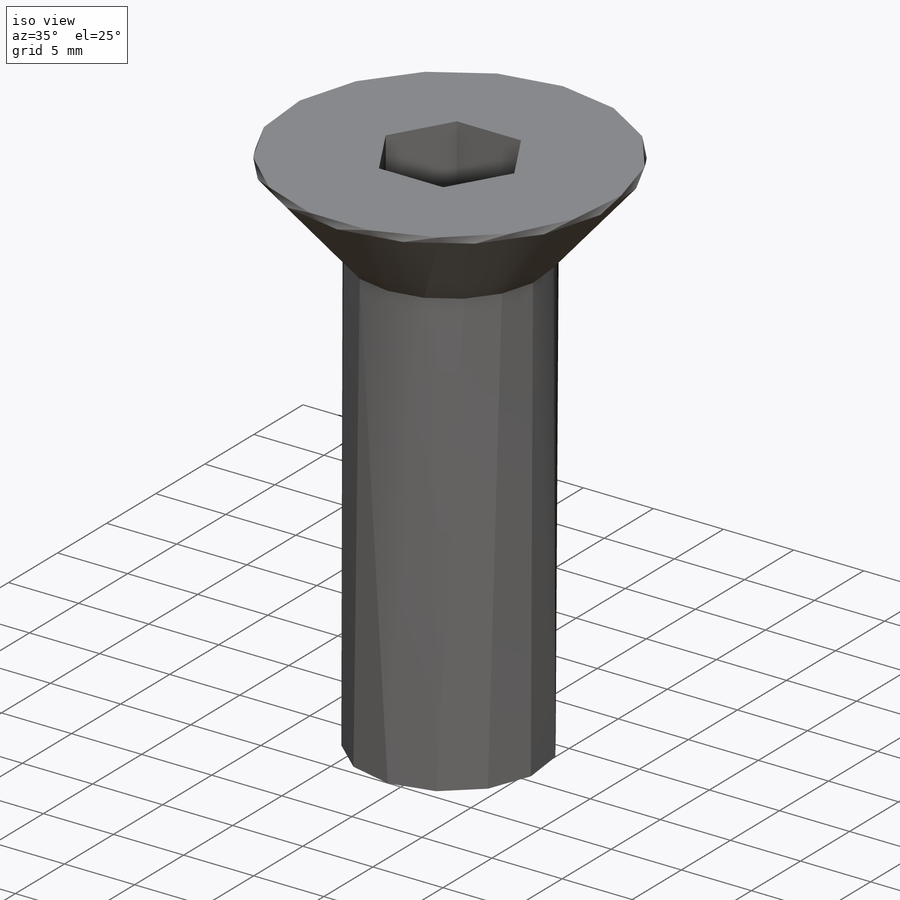
[diagram: iso view]
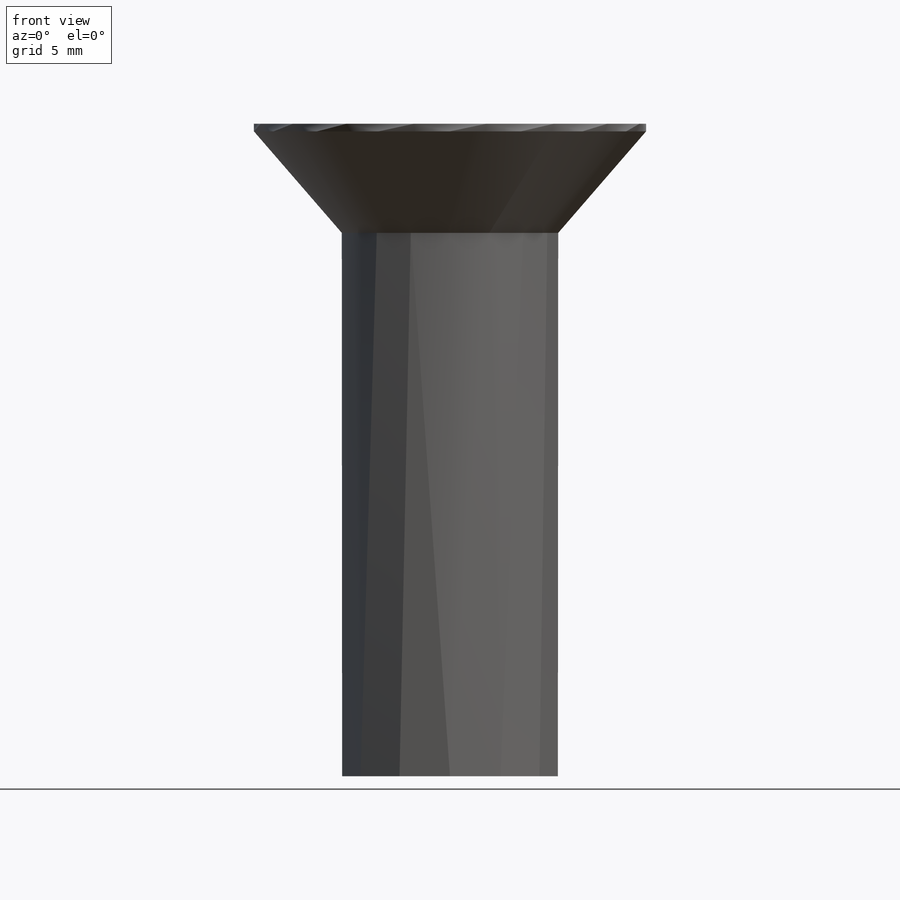
[diagram: front view]
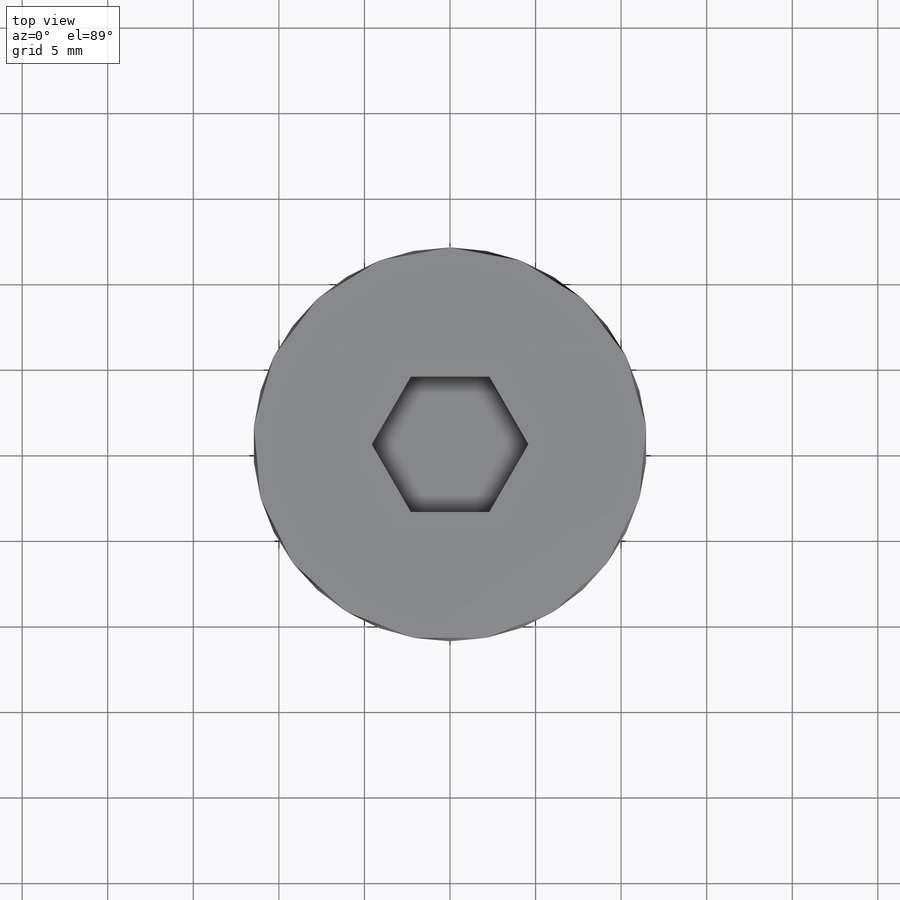
[diagram: top view]
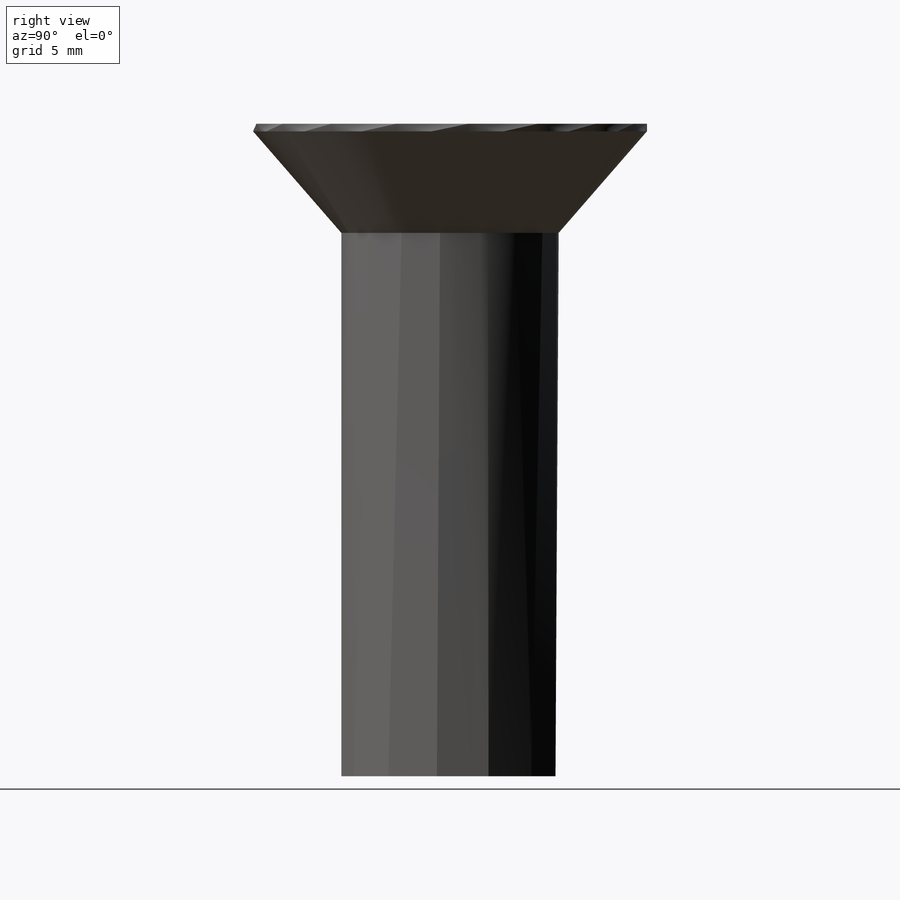
[diagram: right view]
SOLIDWORKS PART (.sldprt)
format: sldprt  version: not decoded by parser v0  size: 371,200 bytes
history: native  units: mm
features: sketch x3, material x1, plane x1, revolve x1, extrude x1, cut_extrude x1 + 1 further entry (+11 scaffold rows collapsed)
feature tree (20):
  scaffold x11  (default folders/planes/origin — collapsed)
  material  "Material <not specified>"
  plane  "Side"
  "Design Table"
  sketch  "Sketch1"  dims[c1.HeadDia=~23.01875mm c1.D2=~6.953199mm c2.D2=82.0deg c2.BodyDia=12.7mm c2.HeadHeight=6.3754mm]
  revolve  "Head"  Angle=360deg
  sketch  "Sketch2"
  extrude  "Length"  Depth=31.75mm Length=31.75mm
  sketch  "Sketch3"  dims[c1.SocketSize=7.9375mm c1.D1=6.35mm c2.D1=60.0deg c2.SocketSize=~3.96875mm c2.D3=6.35mm c3.D3=60.0deg c3.D2=6.35mm c4.D2=60.0deg c4.D3=~5.499261mm]
  cut_extrude  "Cut-Extrude1"  Depth=4.3688mm KeyEngage=4.3688mm
decode coverage: 5 of 6 modeling features carry decoded parameters; 1 rows unclassified (native names shown)
note: ~ marks probable driven/reference dimensions
note: suppression state not decoded; provenance and decode notes live in map.json
